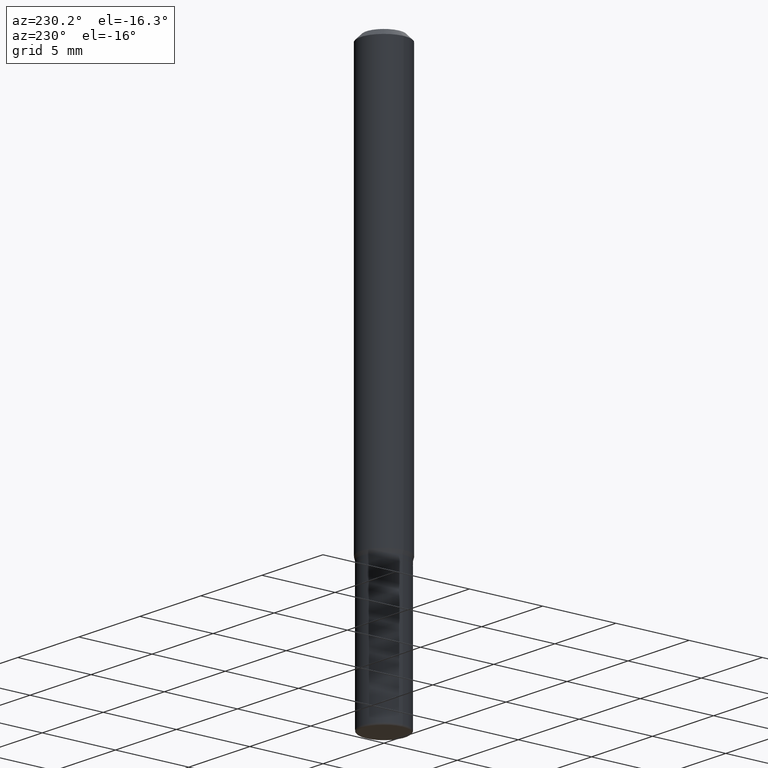
[diagram: clean part render]
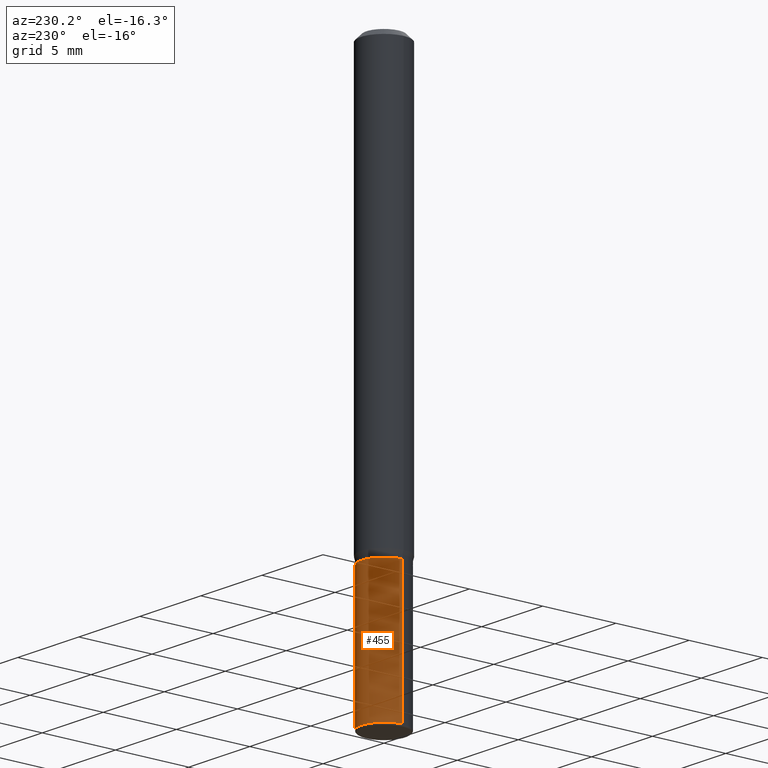
[diagram: same view with one face highlighted and labeled with its STEP entity id]
A machine part, auxiliary view. The second image highlights one B-rep face of the part: STEP entity #455.
In plain terms, the highlighted cylindrical surface (edge-blend (fillet) strip) has radius 1.524 mm, axis along (-0, 0, 1).
Its self-contained STEP definition (entity closure, byte-faithful):
#12 = EDGE_CURVE ( 'NONE', #110, #432, #456, .T. ) ;
#20 = DIRECTION ( 'NONE',  ( 1.000000000000000000, -6.982962677686268288E-15, 0.000000000000000000 ) ) ;
#21 = CARTESIAN_POINT ( 'NONE',  ( -0.06000000000000009492, 4.263256414560607860E-16, -2.951361054152947967E-30 ) ) ;
#32 = VERTEX_POINT ( 'NONE', #416 ) ;
#80 = EDGE_CURVE ( 'NONE', #186, #432, #204, .T. ) ;
#83 = LINE ( 'NONE', #367, #504 ) ;
#102 = CIRCLE ( 'NONE', #513, 0.06000000000000017819 ) ;
#107 = EDGE_CURVE ( 'NONE', #32, #110, #102, .T. ) ;
#110 = VERTEX_POINT ( 'NONE', #140 ) ;
#131 = DIRECTION ( 'NONE',  ( -2.445468806185136877E-29, 3.491481338843145188E-15, 1.000000000000000000 ) ) ;
#140 = CARTESIAN_POINT ( 'NONE',  ( -0.06000000000000017125, -4.173701022469782852E-15, -1.495000000000000107 ) ) ;
#177 = CARTESIAN_POINT ( 'NONE',  ( 3.655975865246779122E-29, -5.219764601570503141E-15, -1.495000000000000107 ) ) ;
#183 = ORIENTED_EDGE ( 'NONE', *, *, #107, .T. ) ;
#186 = VERTEX_POINT ( 'NONE', #510 ) ;
#187 = FACE_OUTER_BOUND ( 'NONE', #218, .T. ) ;
#204 = CIRCLE ( 'NONE', #364, 0.05999999999999999778 ) ;
#218 = EDGE_LOOP ( 'NONE', ( #183, #501, #435, #312 ) ) ;
#223 = CARTESIAN_POINT ( 'NONE',  ( 0.000000000000000000, 0.000000000000000000, 0.000000000000000000 ) ) ;
#236 = DIRECTION ( 'NONE',  ( -2.445468806185136597E-29, 3.491481338843145583E-15, 1.000000000000000000 ) ) ;
#289 = CARTESIAN_POINT ( 'NONE',  ( -0.05999999999999999778, -4.173701022469784429E-15, -1.140000000000000124 ) ) ;
#312 = ORIENTED_EDGE ( 'NONE', *, *, #412, .F. ) ;
#337 = DIRECTION ( 'NONE',  ( -2.445468806185136597E-29, 3.491481338843145583E-15, 1.000000000000000000 ) ) ;
#341 = VECTOR ( 'NONE', #378, 39.37007874015748143 ) ;
#342 = DIRECTION ( 'NONE',  ( 1.000000000000000000, -6.982962677686265922E-15, 4.876176775795935793E-29 ) ) ;
#343 = CARTESIAN_POINT ( 'NONE',  ( 2.787834439051055989E-29, -3.980288726281186698E-15, -1.140000000000000124 ) ) ;
#364 = AXIS2_PLACEMENT_3D ( 'NONE', #343, #236, #20 ) ;
#367 = CARTESIAN_POINT ( 'NONE',  ( 0.06000000000000009492, -4.189777606611766337E-16, 2.925706065477565960E-30 ) ) ;
#378 = DIRECTION ( 'NONE',  ( -2.445468806185136877E-29, 3.491481338843145188E-15, 1.000000000000000000 ) ) ;
#412 = EDGE_CURVE ( 'NONE', #32, #186, #83, .T. ) ;
#416 = CARTESIAN_POINT ( 'NONE',  ( 0.06000000000000017819, -5.638742362231680564E-15, -1.495000000000000107 ) ) ;
#417 = DIRECTION ( 'NONE',  ( 1.000000000000000000, -6.982962677686263555E-15, 0.000000000000000000 ) ) ;
#432 = VERTEX_POINT ( 'NONE', #289 ) ;
#435 = ORIENTED_EDGE ( 'NONE', *, *, #80, .F. ) ;
#450 = CYLINDRICAL_SURFACE ( 'NONE', #469, 0.06000000000000009492 ) ;
#455 = ADVANCED_FACE ( 'NONE', ( #187 ), #450, .T. ) ;
#456 = LINE ( 'NONE', #21, #341 ) ;
#457 = DIRECTION ( 'NONE',  ( -2.445468806185136597E-29, 3.491481338843145583E-15, 1.000000000000000000 ) ) ;
#469 = AXIS2_PLACEMENT_3D ( 'NONE', #223, #457, #342 ) ;
#501 = ORIENTED_EDGE ( 'NONE', *, *, #12, .T. ) ;
#504 = VECTOR ( 'NONE', #131, 39.37007874015748143 ) ;
#510 = CARTESIAN_POINT ( 'NONE',  ( 0.05999999999999999778, -4.399266486942362543E-15, -1.140000000000000124 ) ) ;
#513 = AXIS2_PLACEMENT_3D ( 'NONE', #177, #337, #417 ) ;